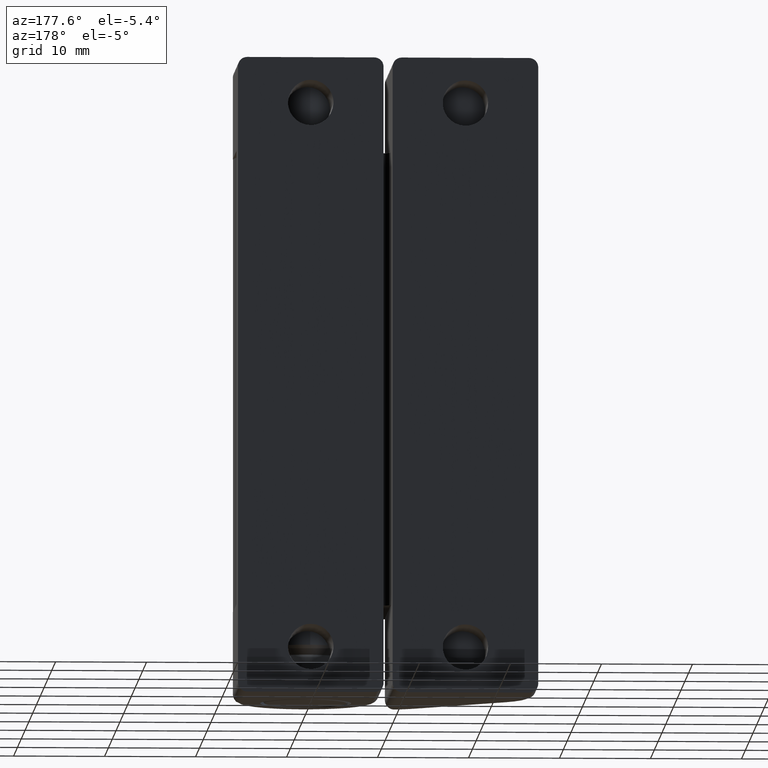
[diagram: clean part render]
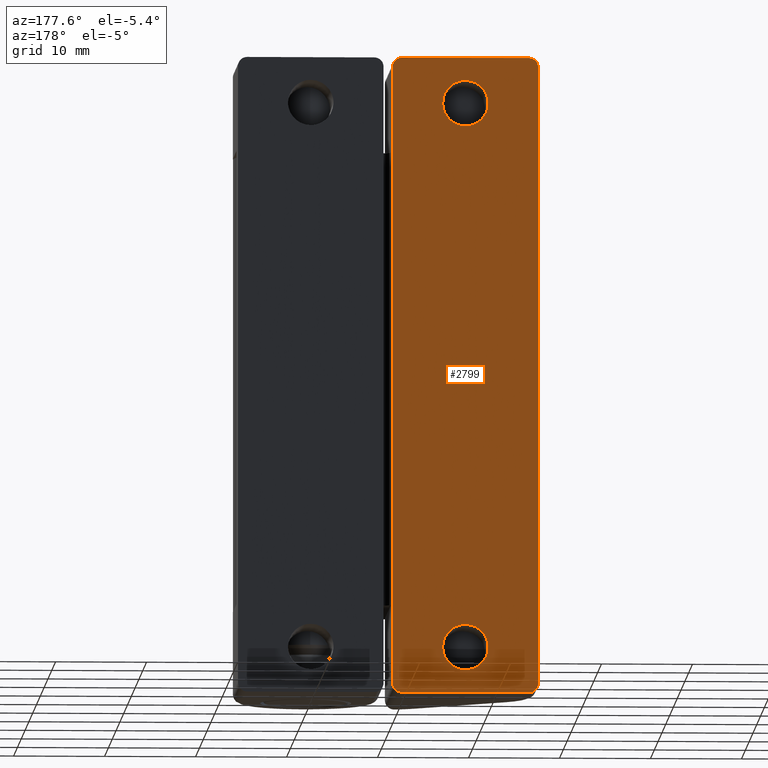
[diagram: same view with one face highlighted and labeled with its STEP entity id]
A machine part, auxiliary view. The second image highlights one B-rep face of the part: STEP entity #2799.
In plain terms, the highlighted face is a freeform B-spline surface patch.
Its self-contained STEP definition (entity closure, byte-faithful):
#1294=CARTESIAN_POINT('',(-19.492293334327389,13.500000000000000,65.196147739388593));
#1295=VERTEX_POINT('',#1294);
#1301=CARTESIAN_POINT('',(-17.0,13.500000000000000,67.500000000000000));
#1302=VERTEX_POINT('',#1301);
#1303=CARTESIAN_POINT('',(-17.0,13.500000000000000,67.500000000000000));
#1304=CARTESIAN_POINT('',(-19.310976229017193,13.500000000000002,67.500000000000000));
#1305=CARTESIAN_POINT('',(-19.492293334327393,13.499999999999998,65.196147739388593));
#1313=(BOUNDED_CURVE()B_SPLINE_CURVE(2,(#1303,#1304,#1305),.UNSPECIFIED.,.F.,.U.)B_SPLINE_CURVE_WITH_KNOTS((3,3),(0.0,0.236331300623278),.UNSPECIFIED.)CURVE()GEOMETRIC_REPRESENTATION_ITEM()RATIONAL_B_SPLINE_CURVE((1.0,0.723120658616314,0.969723356152012))REPRESENTATION_ITEM(''));
#1314=EDGE_CURVE('',#1302,#1295,#1313,.T.);
#1316=CARTESIAN_POINT('',(-14.507706665672609,13.500000000000000,64.803852260611393));
#1317=VERTEX_POINT('',#1316);
#1318=CARTESIAN_POINT('',(-14.507706665672609,13.499999999999995,64.803852260611393));
#1319=CARTESIAN_POINT('',(-14.500000000000000,13.500000000000002,64.901774732411525));
#1320=CARTESIAN_POINT('',(-14.500000000000000,13.500000000000000,65.0));
#1321=CARTESIAN_POINT('',(-14.500000000000000,13.500000000000000,67.500000000000000));
#1322=CARTESIAN_POINT('',(-17.0,13.500000000000000,67.500000000000000));
#1330=(BOUNDED_CURVE()B_SPLINE_CURVE(2,(#1318,#1319,#1320,#1321,#1322),.UNSPECIFIED.,.F.,.U.)B_SPLINE_CURVE_WITH_KNOTS((3,2,3),(0.736331300623277,0.750000000000000,1.0),.UNSPECIFIED.)CURVE()GEOMETRIC_REPRESENTATION_ITEM()RATIONAL_B_SPLINE_CURVE((0.969723356152012,0.983986122570233,1.0,0.707106781186548,1.0))REPRESENTATION_ITEM(''));
#1331=EDGE_CURVE('',#1317,#1302,#1330,.T.);
#1407=CARTESIAN_POINT('',(-17.0,13.500000000000000,62.500000000000000));
#1408=VERTEX_POINT('',#1407);
#1409=CARTESIAN_POINT('',(-17.0,13.500000000000000,62.500000000000000));
#1410=CARTESIAN_POINT('',(-14.689023770982802,13.500000000000002,62.500000000000000));
#1411=CARTESIAN_POINT('',(-14.507706665672606,13.500000000000002,64.803852260611393));
#1419=(BOUNDED_CURVE()B_SPLINE_CURVE(2,(#1409,#1410,#1411),.UNSPECIFIED.,.F.,.U.)B_SPLINE_CURVE_WITH_KNOTS((3,3),(0.500000000000000,0.736331300623278),.UNSPECIFIED.)CURVE()GEOMETRIC_REPRESENTATION_ITEM()RATIONAL_B_SPLINE_CURVE((1.0,0.723120658616314,0.969723356152013))REPRESENTATION_ITEM(''));
#1420=EDGE_CURVE('',#1408,#1317,#1419,.T.);
#1422=CARTESIAN_POINT('',(-19.492293334327396,13.500000000000000,65.196147739388593));
#1423=CARTESIAN_POINT('',(-19.500000000000000,13.500000000000000,65.098225267588461));
#1424=CARTESIAN_POINT('',(-19.500000000000000,13.500000000000000,65.0));
#1425=CARTESIAN_POINT('',(-19.500000000000004,13.500000000000000,62.500000000000000));
#1426=CARTESIAN_POINT('',(-17.0,13.500000000000000,62.500000000000000));
#1434=(BOUNDED_CURVE()B_SPLINE_CURVE(2,(#1422,#1423,#1424,#1425,#1426),.UNSPECIFIED.,.F.,.U.)B_SPLINE_CURVE_WITH_KNOTS((3,2,3),(0.236331300623278,0.250000000000000,0.500000000000000),.UNSPECIFIED.)CURVE()GEOMETRIC_REPRESENTATION_ITEM()RATIONAL_B_SPLINE_CURVE((0.969723356152012,0.983986122570233,1.0,0.707106781186548,1.0))REPRESENTATION_ITEM(''));
#1435=EDGE_CURVE('',#1295,#1408,#1434,.T.);
#1476=CARTESIAN_POINT('',(-19.492293334327389,13.500000000000000,5.196147739388595));
#1477=VERTEX_POINT('',#1476);
#1483=CARTESIAN_POINT('',(-17.0,13.500000000000000,7.500000000000000));
#1484=VERTEX_POINT('',#1483);
#1485=CARTESIAN_POINT('',(-17.0,13.500000000000000,7.500000000000000));
#1486=CARTESIAN_POINT('',(-19.310976229017193,13.500000000000002,7.500000000000001));
#1487=CARTESIAN_POINT('',(-19.492293334327393,13.499999999999998,5.196147739388595));
#1495=(BOUNDED_CURVE()B_SPLINE_CURVE(2,(#1485,#1486,#1487),.UNSPECIFIED.,.F.,.U.)B_SPLINE_CURVE_WITH_KNOTS((3,3),(0.0,0.236331300623278),.UNSPECIFIED.)CURVE()GEOMETRIC_REPRESENTATION_ITEM()RATIONAL_B_SPLINE_CURVE((1.0,0.723120658616314,0.969723356152012))REPRESENTATION_ITEM(''));
#1496=EDGE_CURVE('',#1484,#1477,#1495,.T.);
#1498=CARTESIAN_POINT('',(-14.507706665672609,13.500000000000000,4.803852260611405));
#1499=VERTEX_POINT('',#1498);
#1500=CARTESIAN_POINT('',(-14.507706665672611,13.499999999999998,4.803852260611405));
#1501=CARTESIAN_POINT('',(-14.499999999999996,13.500000000000000,4.901774732411526));
#1502=CARTESIAN_POINT('',(-14.500000000000000,13.500000000000000,5.0));
#1503=CARTESIAN_POINT('',(-14.500000000000000,13.500000000000000,7.500000000000000));
#1504=CARTESIAN_POINT('',(-17.0,13.500000000000000,7.500000000000000));
#1512=(BOUNDED_CURVE()B_SPLINE_CURVE(2,(#1500,#1501,#1502,#1503,#1504),.UNSPECIFIED.,.F.,.U.)B_SPLINE_CURVE_WITH_KNOTS((3,2,3),(0.736331300623278,0.750000000000000,1.0),.UNSPECIFIED.)CURVE()GEOMETRIC_REPRESENTATION_ITEM()RATIONAL_B_SPLINE_CURVE((0.969723356152012,0.983986122570233,1.0,0.707106781186548,1.0))REPRESENTATION_ITEM(''));
#1513=EDGE_CURVE('',#1499,#1484,#1512,.T.);
#1589=CARTESIAN_POINT('',(-17.0,13.500000000000000,2.500000000000000));
#1590=VERTEX_POINT('',#1589);
#1591=CARTESIAN_POINT('',(-17.0,13.500000000000000,2.500000000000000));
#1592=CARTESIAN_POINT('',(-14.689023770982802,13.500000000000002,2.500000000000000));
#1593=CARTESIAN_POINT('',(-14.507706665672606,13.500000000000002,4.803852260611406));
#1601=(BOUNDED_CURVE()B_SPLINE_CURVE(2,(#1591,#1592,#1593),.UNSPECIFIED.,.F.,.U.)B_SPLINE_CURVE_WITH_KNOTS((3,3),(0.500000000000000,0.736331300623278),.UNSPECIFIED.)CURVE()GEOMETRIC_REPRESENTATION_ITEM()RATIONAL_B_SPLINE_CURVE((1.0,0.723120658616314,0.969723356152013))REPRESENTATION_ITEM(''));
#1602=EDGE_CURVE('',#1590,#1499,#1601,.T.);
#1604=CARTESIAN_POINT('',(-19.492293334327393,13.499999999999998,5.196147739388595));
#1605=CARTESIAN_POINT('',(-19.500000000000000,13.500000000000000,5.098225267588476));
#1606=CARTESIAN_POINT('',(-19.500000000000000,13.500000000000000,5.0));
#1607=CARTESIAN_POINT('',(-19.500000000000004,13.500000000000000,2.500000000000000));
#1608=CARTESIAN_POINT('',(-17.0,13.500000000000000,2.500000000000000));
#1616=(BOUNDED_CURVE()B_SPLINE_CURVE(2,(#1604,#1605,#1606,#1607,#1608),.UNSPECIFIED.,.F.,.U.)B_SPLINE_CURVE_WITH_KNOTS((3,2,3),(0.236331300623278,0.250000000000000,0.500000000000000),.UNSPECIFIED.)CURVE()GEOMETRIC_REPRESENTATION_ITEM()RATIONAL_B_SPLINE_CURVE((0.969723356152012,0.983986122570233,1.0,0.707106781186548,1.0))REPRESENTATION_ITEM(''));
#1617=EDGE_CURVE('',#1477,#1590,#1616,.T.);
#1637=CARTESIAN_POINT('',(-24.0,13.500000000000000,0.0));
#1638=VERTEX_POINT('',#1637);
#1639=CARTESIAN_POINT('',(-25.0,13.500000000000000,1.0));
#1640=VERTEX_POINT('',#1639);
#1641=CARTESIAN_POINT('',(-24.0,13.500000000000000,0.0));
#1642=CARTESIAN_POINT('',(-25.0,13.500000000000000,0.0));
#1643=CARTESIAN_POINT('',(-25.0,13.500000000000000,1.0));
#1651=(BOUNDED_CURVE()B_SPLINE_CURVE(2,(#1641,#1642,#1643),.UNSPECIFIED.,.F.,.U.)CURVE()GEOMETRIC_REPRESENTATION_ITEM()QUASI_UNIFORM_CURVE()RATIONAL_B_SPLINE_CURVE((1.0,0.707106781186548,1.0))REPRESENTATION_ITEM(''));
#1652=EDGE_CURVE('',#1638,#1640,#1651,.T.);
#1929=CARTESIAN_POINT('',(-8.999999999999799,13.500000000000000,1.0));
#1930=VERTEX_POINT('',#1929);
#1931=CARTESIAN_POINT('',(-9.999999999999799,13.500000000000000,0.0));
#1932=VERTEX_POINT('',#1931);
#1933=CARTESIAN_POINT('',(-8.999999999999799,13.500000000000000,1.0));
#1934=CARTESIAN_POINT('',(-8.999999999999799,13.500000000000000,0.0));
#1935=CARTESIAN_POINT('',(-9.999999999999799,13.500000000000000,0.0));
#1943=(BOUNDED_CURVE()B_SPLINE_CURVE(2,(#1933,#1934,#1935),.UNSPECIFIED.,.F.,.U.)CURVE()GEOMETRIC_REPRESENTATION_ITEM()QUASI_UNIFORM_CURVE()RATIONAL_B_SPLINE_CURVE((1.0,0.707106781186548,1.0))REPRESENTATION_ITEM(''));
#1944=EDGE_CURVE('',#1930,#1932,#1943,.T.);
#1974=CARTESIAN_POINT('',(-25.0,13.500000000000000,69.0));
#1975=VERTEX_POINT('',#1974);
#1976=CARTESIAN_POINT('',(-24.0,13.500000000000000,70.0));
#1977=VERTEX_POINT('',#1976);
#1978=CARTESIAN_POINT('',(-25.0,13.500000000000000,69.0));
#1979=CARTESIAN_POINT('',(-25.0,13.500000000000000,70.0));
#1980=CARTESIAN_POINT('',(-24.0,13.500000000000000,70.0));
#1988=(BOUNDED_CURVE()B_SPLINE_CURVE(2,(#1978,#1979,#1980),.UNSPECIFIED.,.F.,.U.)CURVE()GEOMETRIC_REPRESENTATION_ITEM()QUASI_UNIFORM_CURVE()RATIONAL_B_SPLINE_CURVE((1.0,0.707106781186548,1.0))REPRESENTATION_ITEM(''));
#1989=EDGE_CURVE('',#1975,#1977,#1988,.T.);
#2271=CARTESIAN_POINT('',(-8.999999999999799,13.500000000000000,69.0));
#2272=VERTEX_POINT('',#2271);
#2278=CARTESIAN_POINT('',(-9.999999999999799,13.500000000000000,70.0));
#2279=VERTEX_POINT('',#2278);
#2280=CARTESIAN_POINT('',(-9.999999999999799,13.500000000000000,70.0));
#2281=CARTESIAN_POINT('',(-8.999999999999799,13.500000000000000,70.0));
#2282=CARTESIAN_POINT('',(-8.999999999999799,13.500000000000000,69.0));
#2290=(BOUNDED_CURVE()B_SPLINE_CURVE(2,(#2280,#2281,#2282),.UNSPECIFIED.,.F.,.U.)CURVE()GEOMETRIC_REPRESENTATION_ITEM()QUASI_UNIFORM_CURVE()RATIONAL_B_SPLINE_CURVE((1.0,0.707106781186548,1.0))REPRESENTATION_ITEM(''));
#2291=EDGE_CURVE('',#2279,#2272,#2290,.T.);
#2620=CARTESIAN_POINT('',(-9.999999999999799,13.500000000000000,0.0));
#2621=CARTESIAN_POINT('',(-24.0,13.500000000000000,0.0));
#2622=QUASI_UNIFORM_CURVE('',1,(#2620,#2621),.UNSPECIFIED.,.F.,.U.);
#2623=EDGE_CURVE('',#1932,#1638,#2622,.T.);
#2636=CARTESIAN_POINT('',(-9.999999999999799,13.500000000000000,70.0));
#2637=CARTESIAN_POINT('',(-24.0,13.500000000000000,70.0));
#2638=QUASI_UNIFORM_CURVE('',1,(#2636,#2637),.UNSPECIFIED.,.F.,.U.);
#2639=EDGE_CURVE('',#2279,#1977,#2638,.T.);
#2757=CARTESIAN_POINT('',(-25.0,13.500000000000000,69.0));
#2758=CARTESIAN_POINT('',(-25.0,13.500000000000000,1.0));
#2759=QUASI_UNIFORM_CURVE('',1,(#2757,#2758),.UNSPECIFIED.,.F.,.U.);
#2760=EDGE_CURVE('',#1975,#1640,#2759,.T.);
#2768=CARTESIAN_POINT('',(-25.799199968988908,13.500000000000000,73.496499864326410));
#2769=CARTESIAN_POINT('',(-25.799199968988908,13.500000000000000,-3.496501741872728));
#2770=CARTESIAN_POINT('',(-8.200799601857453,13.500000000000000,73.496499864326410));
#2771=CARTESIAN_POINT('',(-8.200799601857453,13.500000000000000,-3.496501741872728));
#2772=B_SPLINE_SURFACE_WITH_KNOTS('',1,1,((#2768,#2770),(#2769,#2771)),.UNSPECIFIED.,.F.,.F.,.U.,(2,2),(2,2),(0.0,76.993001606199144),(0.0,17.598400367131450),.UNSPECIFIED.);
#2773=ORIENTED_EDGE('',*,*,#2623,.T.);
#2774=ORIENTED_EDGE('',*,*,#1652,.T.);
#2775=ORIENTED_EDGE('',*,*,#2760,.F.);
#2776=ORIENTED_EDGE('',*,*,#1989,.T.);
#2777=ORIENTED_EDGE('',*,*,#2639,.F.);
#2778=ORIENTED_EDGE('',*,*,#2291,.T.);
#2779=CARTESIAN_POINT('',(-8.999999999999799,13.500000000000000,69.0));
#2780=CARTESIAN_POINT('',(-8.999999999999799,13.500000000000000,1.0));
#2781=QUASI_UNIFORM_CURVE('',1,(#2779,#2780),.UNSPECIFIED.,.F.,.U.);
#2782=EDGE_CURVE('',#2272,#1930,#2781,.T.);
#2783=ORIENTED_EDGE('',*,*,#2782,.T.);
#2784=ORIENTED_EDGE('',*,*,#1944,.T.);
#2785=EDGE_LOOP('',(#2773,#2774,#2775,#2776,#2777,#2778,#2783,#2784));
#2786=FACE_OUTER_BOUND('',#2785,.T.);
#2787=ORIENTED_EDGE('',*,*,#1602,.T.);
#2788=ORIENTED_EDGE('',*,*,#1513,.T.);
#2789=ORIENTED_EDGE('',*,*,#1496,.T.);
#2790=ORIENTED_EDGE('',*,*,#1617,.T.);
#2791=EDGE_LOOP('',(#2787,#2788,#2789,#2790));
#2792=FACE_BOUND('',#2791,.T.);
#2793=ORIENTED_EDGE('',*,*,#1420,.T.);
#2794=ORIENTED_EDGE('',*,*,#1331,.T.);
#2795=ORIENTED_EDGE('',*,*,#1314,.T.);
#2796=ORIENTED_EDGE('',*,*,#1435,.T.);
#2797=EDGE_LOOP('',(#2793,#2794,#2795,#2796));
#2798=FACE_BOUND('',#2797,.T.);
#2799=ADVANCED_FACE('',(#2786,#2792,#2798),#2772,.F.);